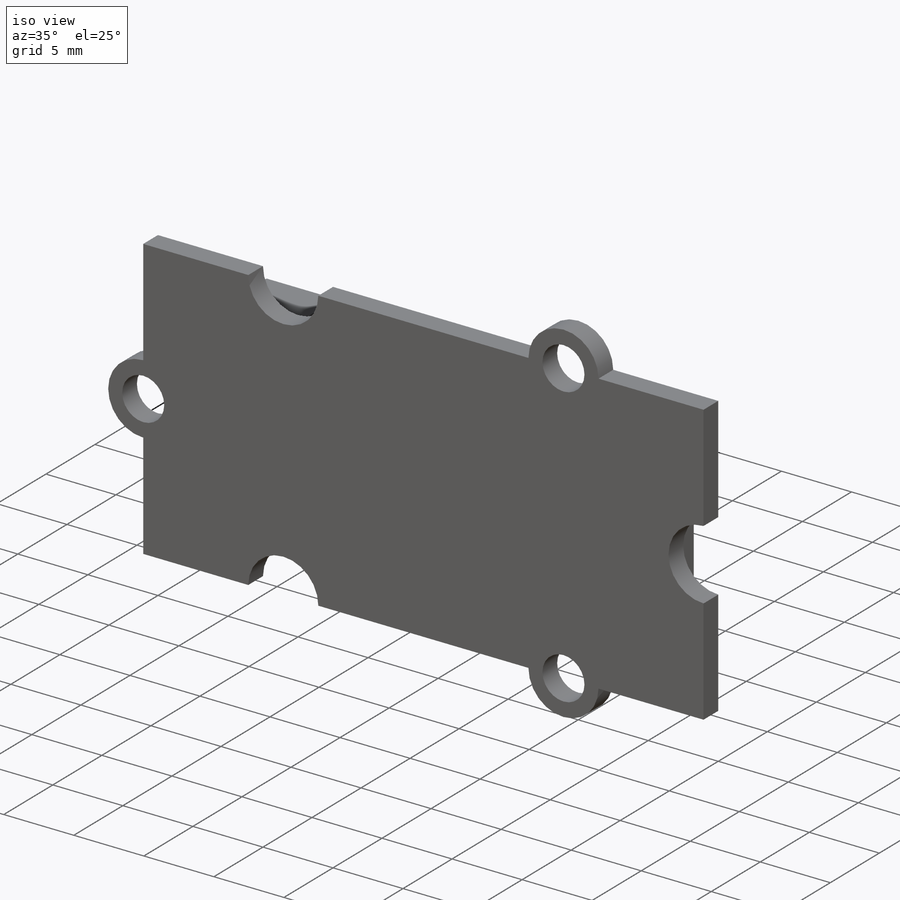
[diagram: iso view]
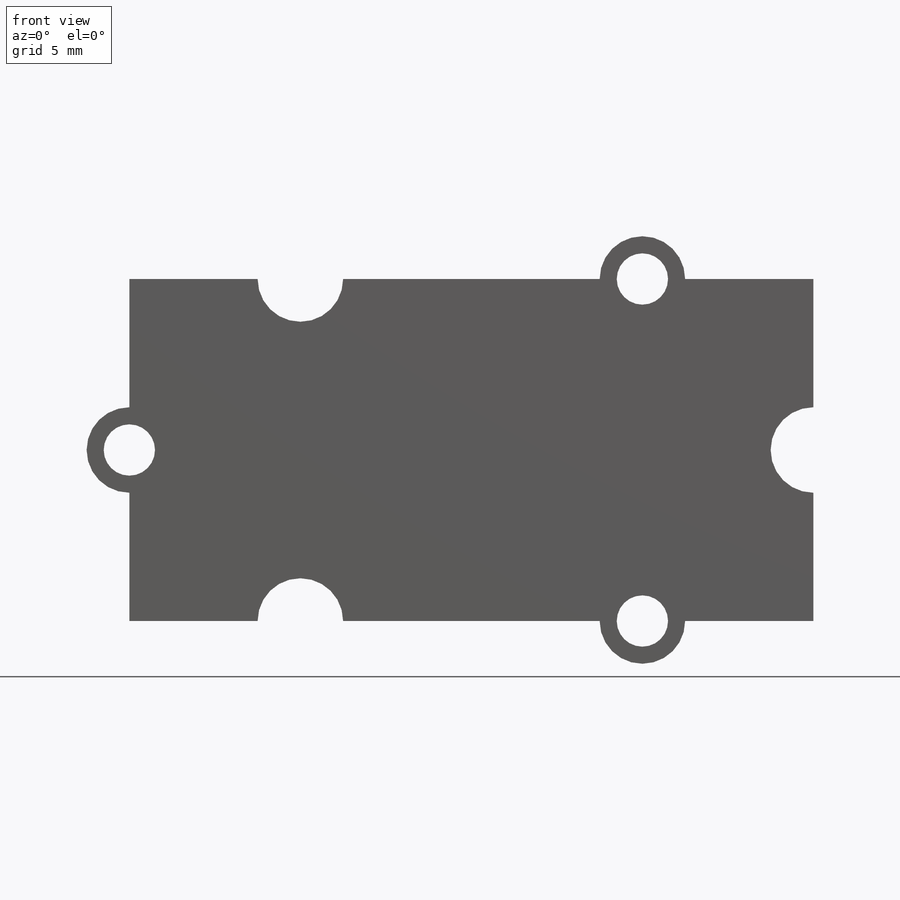
[diagram: front view]
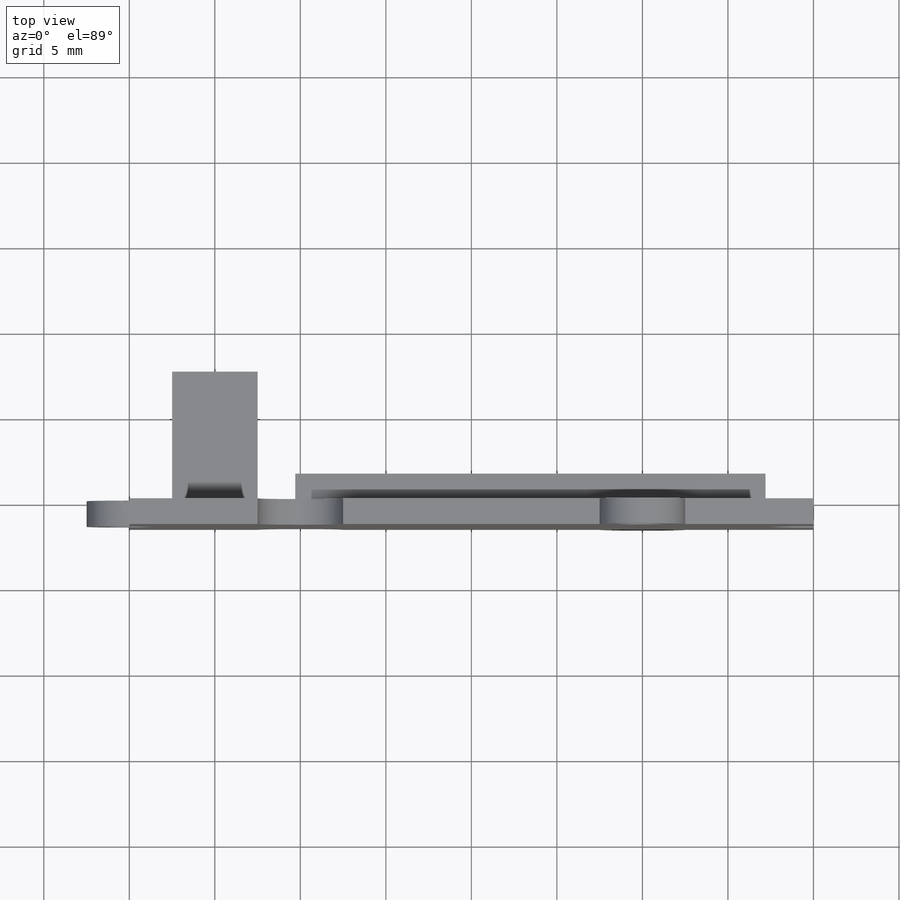
[diagram: top view]
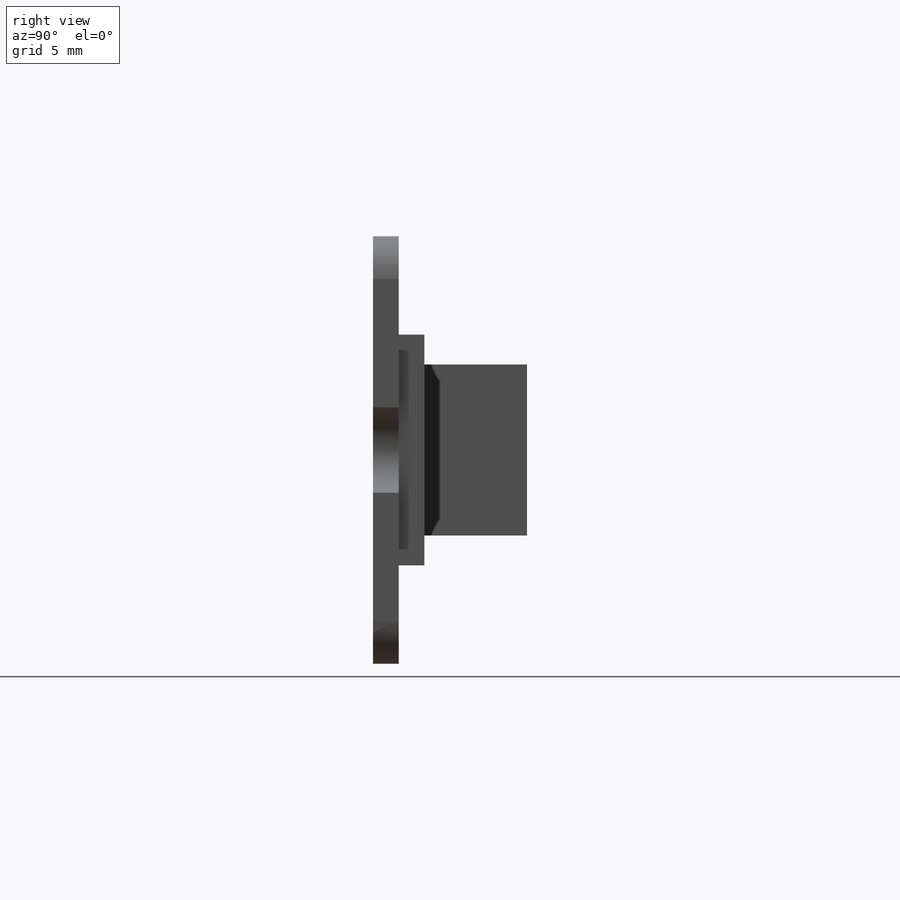
[diagram: right view]
SOLIDWORKS PART (.sldprt)
format: sldprt  version: not decoded by parser v0  size: 315,392 bytes
history: native  units: mm
features: sketch x9, extrude x6, plane x3, cut_extrude x3, material x1, shell x1, fillet x1 (+10 scaffold rows collapsed)
feature tree (34):
  scaffold x10  (default folders/planes/origin — collapsed)
  material  "Material <nicht angegeben>"
  plane  "Ebene vorne"
  plane  "Ebene oben"
  plane  "Ebene rechts"
  sketch  "Skizze1"  dims[D1=40.0mm D2=20.0mm]
  extrude  "Aufsatz-Linear austragen1"  Depth=1.5mm
  sketch  "Skizze2"  dims[D2=5.0mm D1=0.0mm]
  cut_extrude  "Schnitt-Linear austragen1"  [1 undecoded]
  sketch  "Skizze3"  dims[D1=5.0mm D2=10.0mm D3=2.0]
  cut_extrude  "Schnitt-Linear austragen2"  [1 undecoded]
  sketch  "Skizze4"  dims[D1=5.0mm D2=10.0mm D3=2.0]
  extrude  "Aufsatz-Linear austragen2"  [1 undecoded]
  sketch  "Skizze5"  dims[D1=20.0mm]
  extrude  "Aufsatz-Linear austragen3"  [1 undecoded]
  sketch  "Skizze6"  dims[D1=3.0mm D2=3.0mm D4=3.0mm D3=0.0mm]
  cut_extrude  "Schnitt-Linear austragen3"  [1 undecoded]
  sketch  "Skizze7"  dims[D1=27.5mm D2=13.5mm D3=0.0mm D4=2.8mm]
  extrude  "Aufsatz-Linear austragen4"  Depth=1.5mm
  sketch  "Skizze8"  dims[D1=10.0mm D2=5.0mm D3=0.0mm D4=2.5mm]
  extrude  "Aufsatz-Linear austragen5"  Depth=7.5mm
  shell  "Wandung1"  Thickness=0.5mm
  sketch  "Skizze10"  dims[D2=1.5mm D1=2.5mm D4=2.25mm D3=4.0]
  extrude  "Aufsatz-Linear austragen6"  Depth=6.5mm
  fillet  "Verrundung1"  Radius=0.5mm
decode coverage: 15 of 20 modeling features carry decoded parameters
note: 5 parameter values undecoded
summary: no parameter record found for 5 features
note: suppression state not decoded; provenance and decode notes live in map.json
